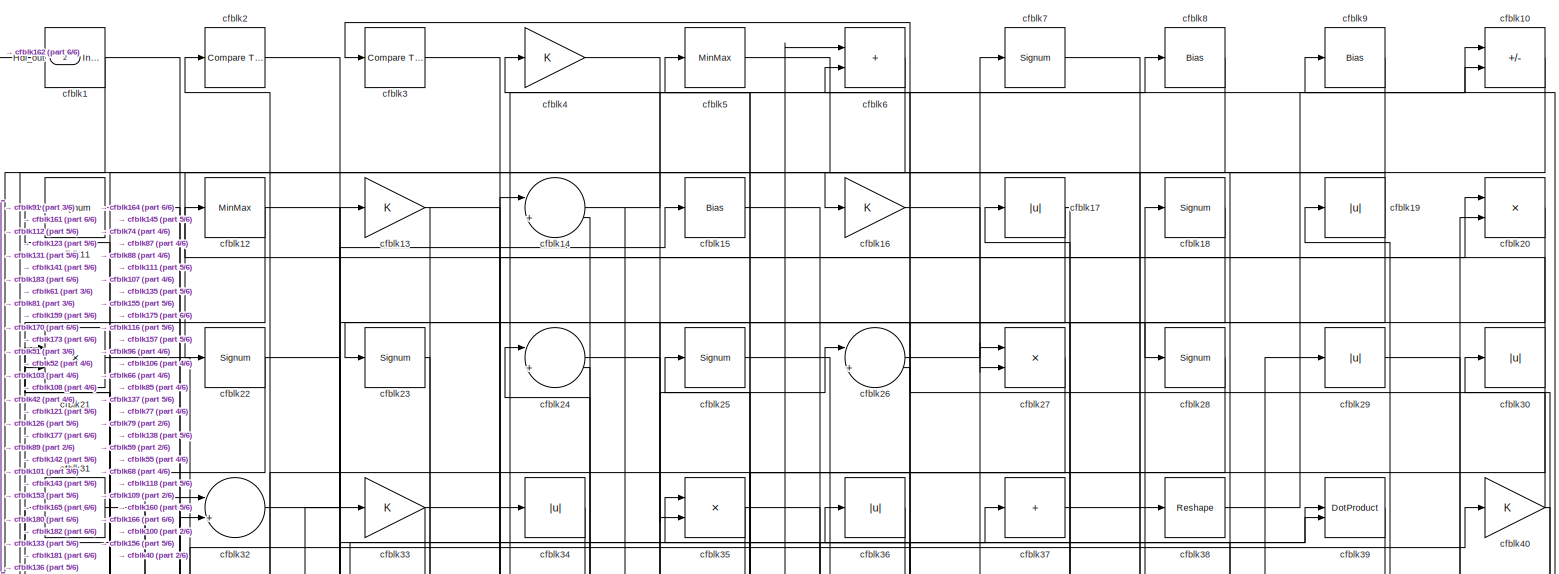
[diagram: root canvas - part 1/6, full width, top band]
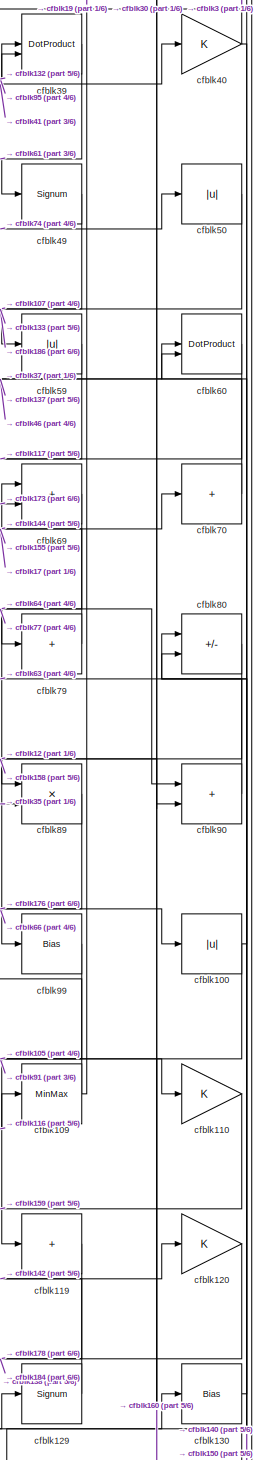
[diagram: root canvas - part 2/6, middle right region]
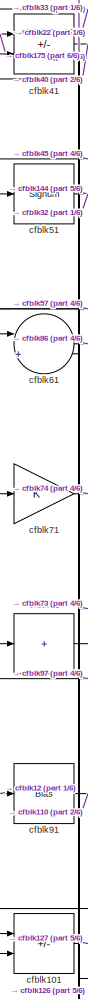
[diagram: root canvas - part 3/6, middle left region]
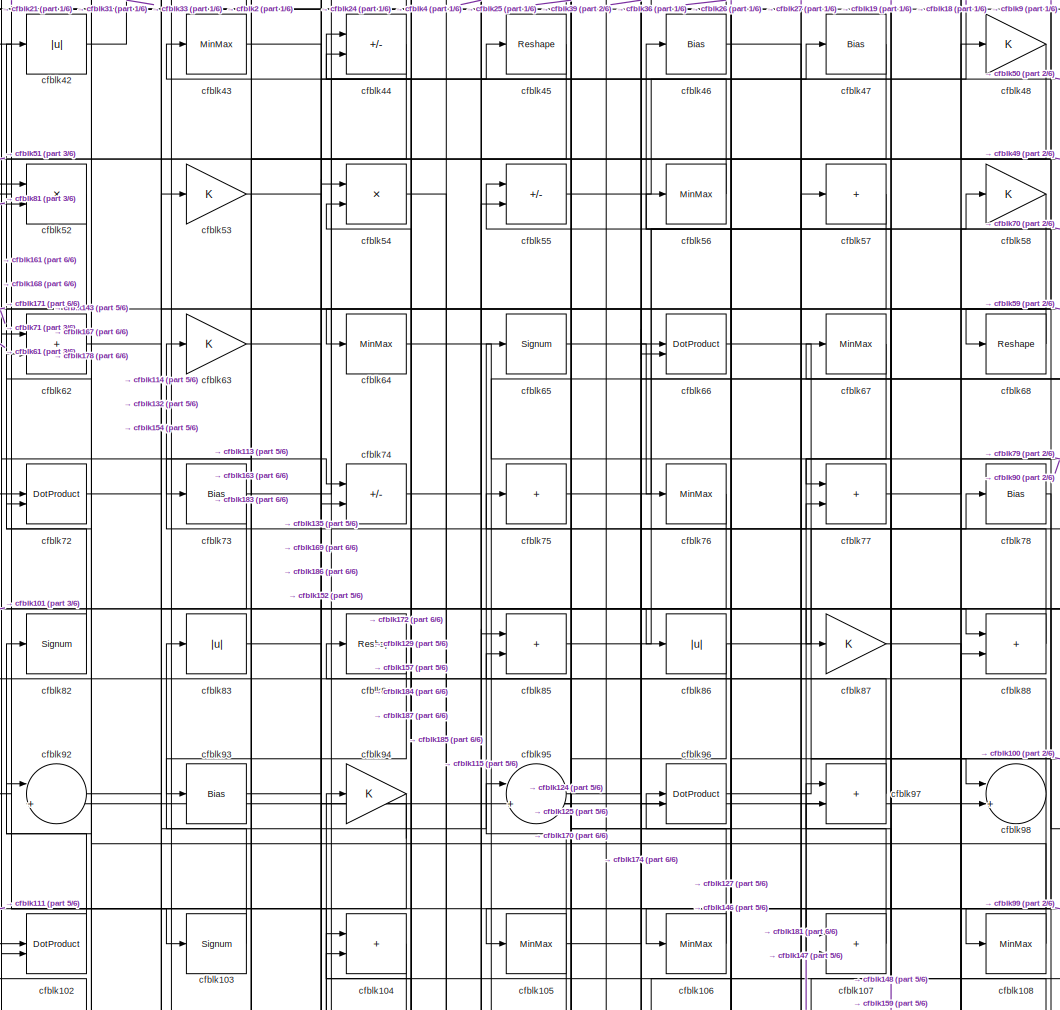
[diagram: root canvas - part 4/6, central region]
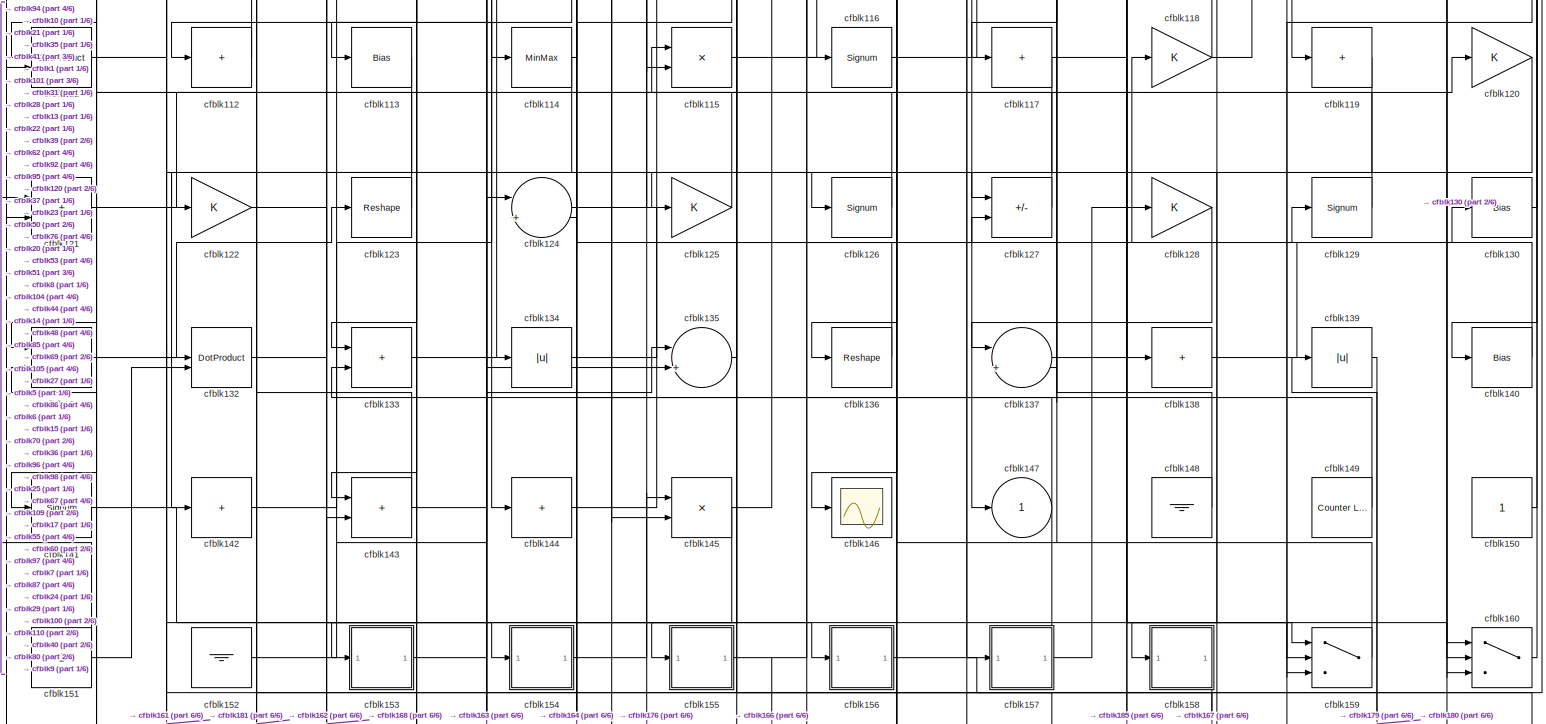
[diagram: root canvas - part 5/6, full width, bottom band]
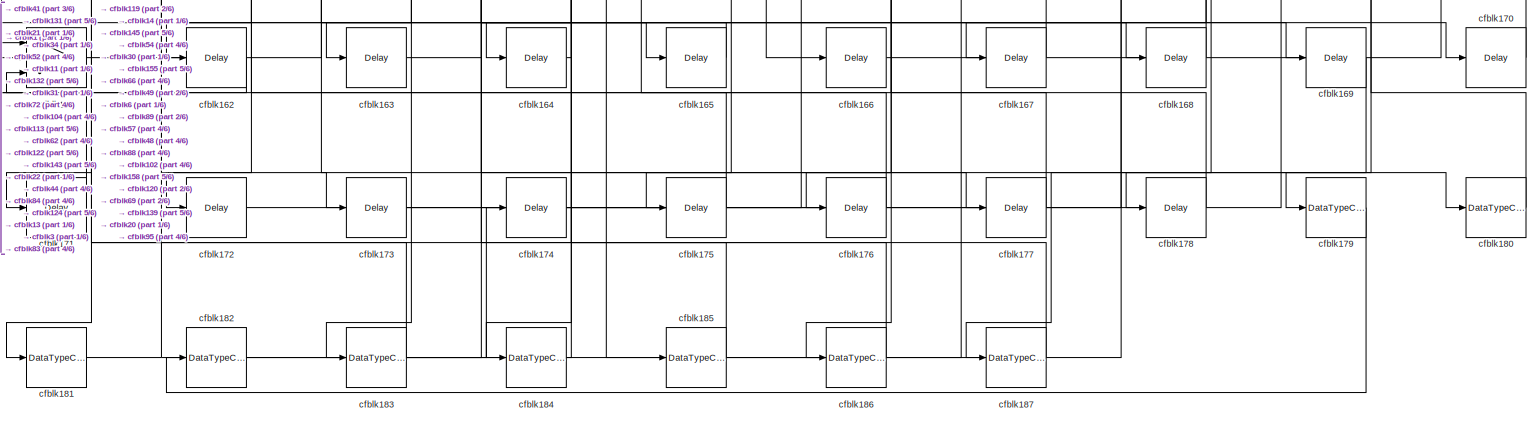
[diagram: root canvas - part 6/6, full width, bottom band]
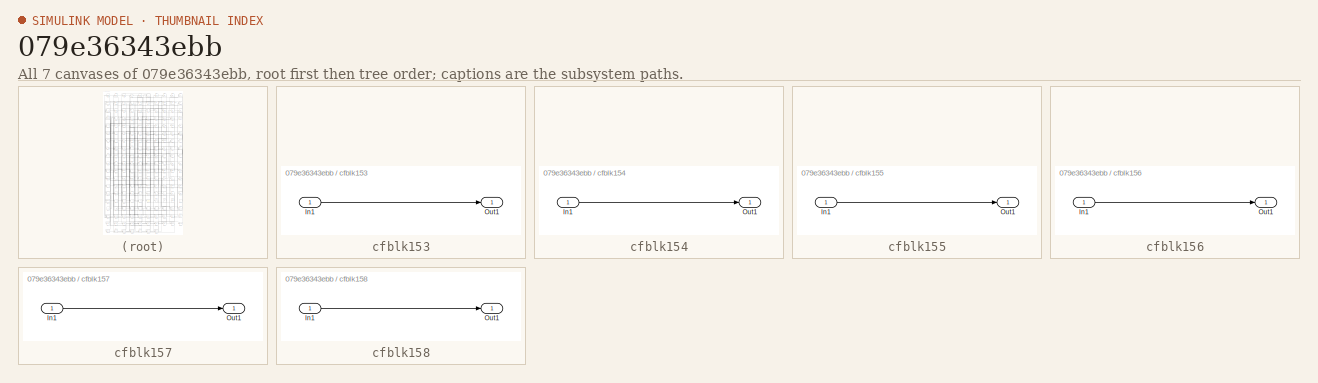
[diagram: thumbnail index - all 7 canvases of the model, root first then tree order]
MODEL slx_079e36343ebb
KIND model
CONFIG AbsTol = auto
CONFIG EnableMultiTasking = off
CONFIG FixedStep = auto
CONFIG MaxStep = auto
CONFIG MinStep = auto
CONFIG RelTol = 1e-3
CONFIG SampleTimeConstraint = Unconstrained
CONFIG SolverName = VariableStepAuto
CONFIG StartTime = 0.0
CONFIG StopTime = 10.0
BLOCK [Outport] Hdl_out
  OutDataTypeStr = uint8
  Port = 2
BLOCK [Reference] cfblk1  REF=simulink/Logic and Bit
Operations/Detect
Increase
  LibrarySourceBlock = hdlsllib/Logic and Bit\nOperations/Detect\nIncrease
  SourceBlock = simulink/Logic and Bit\nOperations/Detect\nIncrease
  SourceType = Detect Increase
BLOCK [Sum] cfblk10
  IconShape = rectangular
  Inputs = +-
  OutDataTypeStr = uint8
BLOCK [Abs] cfblk100
  OutDataTypeStr = uint8
  SaturateOnIntegerOverflow = off
BLOCK [Sum] cfblk101
  IconShape = rectangular
  Inputs = +-
  OutDataTypeStr = uint8
BLOCK [DotProduct] cfblk102
  OutDataTypeStr = uint8
BLOCK [Signum] cfblk103
BLOCK [Sum] cfblk104
  IconShape = rectangular
  OutDataTypeStr = uint8
BLOCK [MinMax] cfblk105
  OutDataTypeStr = uint8
BLOCK [MinMax] cfblk106
  OutDataTypeStr = uint8
BLOCK [Sum] cfblk107
  IconShape = rectangular
  OutDataTypeStr = uint8
BLOCK [MinMax] cfblk108
  OutDataTypeStr = uint8
BLOCK [MinMax] cfblk109
  OutDataTypeStr = uint8
BLOCK [Signum] cfblk11
BLOCK [Gain] cfblk110
  OutDataTypeStr = uint8
BLOCK [DotProduct] cfblk111
  OutDataTypeStr = uint8
BLOCK [Sum] cfblk112
  IconShape = rectangular
  Inputs = +
  OutDataTypeStr = uint8
BLOCK [Bias] cfblk113
  Bias = 0.0
  SaturateOnIntegerOverflow = off
BLOCK [MinMax] cfblk114
  OutDataTypeStr = uint8
BLOCK [Product] cfblk115
  Inputs = */
  OutDataTypeStr = uint8
  RndMeth = Zero
  SaturateOnIntegerOverflow = on
BLOCK [Signum] cfblk116
BLOCK [Sum] cfblk117
  IconShape = rectangular
  Inputs = +
  OutDataTypeStr = uint8
BLOCK [Gain] cfblk118
  OutDataTypeStr = uint8
BLOCK [Sum] cfblk119
  IconShape = rectangular
  Inputs = +
  OutDataTypeStr = uint8
BLOCK [MinMax] cfblk12
  OutDataTypeStr = uint8
BLOCK [Gain] cfblk120
  OutDataTypeStr = uint8
BLOCK [Sum] cfblk121
  IconShape = rectangular
  OutDataTypeStr = uint8
BLOCK [Gain] cfblk122
  OutDataTypeStr = uint8
BLOCK [Reshape] cfblk123
BLOCK [Sum] cfblk124
  Inputs = |++
  OutDataTypeStr = uint8
BLOCK [Gain] cfblk125
  OutDataTypeStr = uint8
BLOCK [Signum] cfblk126
BLOCK [Sum] cfblk127
  IconShape = rectangular
  Inputs = +-
  OutDataTypeStr = uint8
BLOCK [Gain] cfblk128
  OutDataTypeStr = uint8
BLOCK [Signum] cfblk129
BLOCK [Gain] cfblk13
  OutDataTypeStr = uint8
BLOCK [Bias] cfblk130
  Bias = 0.0
  SaturateOnIntegerOverflow = off
BLOCK [Sum] cfblk131
  IconShape = rectangular
  Inputs = +-
  OutDataTypeStr = uint8
BLOCK [DotProduct] cfblk132
  OutDataTypeStr = uint8
BLOCK [Sum] cfblk133
  IconShape = rectangular
  OutDataTypeStr = uint8
BLOCK [Abs] cfblk134
  OutDataTypeStr = uint8
  SaturateOnIntegerOverflow = off
BLOCK [Sum] cfblk135
  Inputs = |++
  OutDataTypeStr = uint8
BLOCK [Reshape] cfblk136
BLOCK [Sum] cfblk137
  Inputs = |++
  OutDataTypeStr = uint8
BLOCK [Sum] cfblk138
  IconShape = rectangular
  Inputs = +
  OutDataTypeStr = uint8
BLOCK [Abs] cfblk139
  OutDataTypeStr = uint8
  SaturateOnIntegerOverflow = off
BLOCK [Sum] cfblk14
  Inputs = |++
  OutDataTypeStr = uint8
BLOCK [Bias] cfblk140
  Bias = 0.0
  SaturateOnIntegerOverflow = off
BLOCK [Signum] cfblk141
BLOCK [Sum] cfblk142
  IconShape = rectangular
  Inputs = +
  OutDataTypeStr = uint8
BLOCK [Sum] cfblk143
  IconShape = rectangular
  OutDataTypeStr = uint8
BLOCK [Sum] cfblk144
  IconShape = rectangular
  Inputs = +
  OutDataTypeStr = uint8
BLOCK [Product] cfblk145
  Inputs = */
  OutDataTypeStr = uint8
  RndMeth = Zero
  SaturateOnIntegerOverflow = on
BLOCK [Scope] cfblk146
  Floating = off
  NumInputPorts = 1
  ScopeSpecificationString = Simulink.scopes.TimeScopeBlockCfg('CurrentConfiguration', extmgr.ConfigurationSet(extmgr.Configuration('Core','General UI',true),extmgr.Configuration('Core','Source UI',true),extmgr.Configuration('Sources','WiredSimulink',true,'DataLoggingVariableName','ScopeData2','DataLoggingSaveFormat','Array','DataLoggingLimitDataPoints',true,'DataLoggingDecimation','1'),extmgr.Configuration('Visuals','Time Do...<+868ch>
BLOCK [Outport] cfblk147
  OutDataTypeStr = uint8
  VectorParamsAs1DForOutWhenUnconnected = off
BLOCK [Ground] cfblk148
BLOCK [Reference] cfblk149  REF=hdlsllib/Sources/Counter
Limited
  SourceBlock = hdlsllib/Sources/Counter\nLimited
  SourceType = Counter Limited
BLOCK [Bias] cfblk15
  Bias = 0.0
  SaturateOnIntegerOverflow = off
BLOCK [Constant] cfblk150
  OutDataTypeStr = uint8
  SampleTime = -1
BLOCK [Constant] cfblk151
  OutDataTypeStr = uint8
  SampleTime = -1
BLOCK [Ground] cfblk152
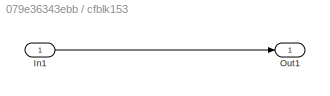
BLOCK [SubSystem] cfblk153
  LibrarySourceBlock = hdlsllib/Ports &\nSubsystems/Subsystem
BLOCK [Inport] cfblk153/In1
BLOCK [Outport] cfblk153/Out1
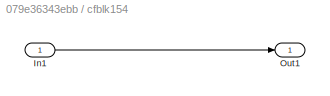
BLOCK [SubSystem] cfblk154
  LibrarySourceBlock = hdlsllib/Ports &\nSubsystems/Subsystem
BLOCK [Inport] cfblk154/In1
BLOCK [Outport] cfblk154/Out1
BLOCK [SubSystem] cfblk155
  LibrarySourceBlock = hdlsllib/Ports &\nSubsystems/Subsystem
BLOCK [Inport] cfblk155/In1
BLOCK [Outport] cfblk155/Out1
BLOCK [SubSystem] cfblk156
  LibrarySourceBlock = hdlsllib/Ports &\nSubsystems/Subsystem
BLOCK [Inport] cfblk156/In1
BLOCK [Outport] cfblk156/Out1
BLOCK [SubSystem] cfblk157
  LibrarySourceBlock = hdlsllib/Ports &\nSubsystems/Subsystem
BLOCK [Inport] cfblk157/In1
BLOCK [Outport] cfblk157/Out1
BLOCK [SubSystem] cfblk158
  LibrarySourceBlock = hdlsllib/Ports &\nSubsystems/Subsystem
BLOCK [Inport] cfblk158/In1
BLOCK [Outport] cfblk158/Out1
BLOCK [Switch] cfblk159
  InputSameDT = off
  OutDataTypeStr = uint8
  SaturateOnIntegerOverflow = off
BLOCK [Gain] cfblk16
  OutDataTypeStr = uint8
BLOCK [Switch] cfblk160
  InputSameDT = off
  OutDataTypeStr = uint8
  SaturateOnIntegerOverflow = off
BLOCK [Switch] cfblk161
  InputSameDT = off
  OutDataTypeStr = uint8
  SaturateOnIntegerOverflow = off
BLOCK [Delay] cfblk162
  InputPortMap = u0
  SampleTime = 1
BLOCK [Delay] cfblk163
  InputPortMap = u0
  SampleTime = 1
BLOCK [Delay] cfblk164
  InputPortMap = u0
  SampleTime = 1
BLOCK [Delay] cfblk165
  InputPortMap = u0
  SampleTime = 1
BLOCK [Delay] cfblk166
  InputPortMap = u0
  SampleTime = 1
BLOCK [Delay] cfblk167
  InputPortMap = u0
  SampleTime = 1
BLOCK [Delay] cfblk168
  InputPortMap = u0
  SampleTime = 1
BLOCK [Delay] cfblk169
  InputPortMap = u0
  SampleTime = 1
BLOCK [Abs] cfblk17
  OutDataTypeStr = uint8
  SaturateOnIntegerOverflow = off
BLOCK [Delay] cfblk170
  InputPortMap = u0
  SampleTime = 1
BLOCK [Delay] cfblk171
  InputPortMap = u0
  SampleTime = 1
BLOCK [Delay] cfblk172
  InputPortMap = u0
  SampleTime = 1
BLOCK [Delay] cfblk173
  InputPortMap = u0
  SampleTime = 1
BLOCK [Delay] cfblk174
  InputPortMap = u0
  SampleTime = 1
BLOCK [Delay] cfblk175
  InputPortMap = u0
  SampleTime = 1
BLOCK [Delay] cfblk176
  InputPortMap = u0
  SampleTime = 1
BLOCK [Delay] cfblk177
  InputPortMap = u0
  SampleTime = 1
BLOCK [Delay] cfblk178
  InputPortMap = u0
  SampleTime = 1
BLOCK [DataTypeConversion] cfblk179
  OutDataTypeStr = uint8
  RndMeth = Floor
  SaturateOnIntegerOverflow = off
BLOCK [Signum] cfblk18
BLOCK [DataTypeConversion] cfblk180
  OutDataTypeStr = uint8
  RndMeth = Floor
  SaturateOnIntegerOverflow = off
BLOCK [DataTypeConversion] cfblk181
  OutDataTypeStr = uint8
  RndMeth = Floor
  SaturateOnIntegerOverflow = off
BLOCK [DataTypeConversion] cfblk182
  OutDataTypeStr = uint8
  RndMeth = Floor
  SaturateOnIntegerOverflow = off
BLOCK [DataTypeConversion] cfblk183
  OutDataTypeStr = uint8
  RndMeth = Floor
  SaturateOnIntegerOverflow = off
BLOCK [DataTypeConversion] cfblk184
  OutDataTypeStr = uint8
  RndMeth = Floor
  SaturateOnIntegerOverflow = off
BLOCK [DataTypeConversion] cfblk185
  OutDataTypeStr = uint8
  RndMeth = Floor
  SaturateOnIntegerOverflow = off
BLOCK [DataTypeConversion] cfblk186
  OutDataTypeStr = uint8
  RndMeth = Floor
  SaturateOnIntegerOverflow = off
BLOCK [DataTypeConversion] cfblk187
  OutDataTypeStr = uint8
  RndMeth = Floor
  SaturateOnIntegerOverflow = off
BLOCK [Abs] cfblk19
  OutDataTypeStr = uint8
  SaturateOnIntegerOverflow = off
BLOCK [Reference] cfblk2  REF=hdlsllib/Logic and Bit
Operations/Compare
To Constant
  SourceBlock = hdlsllib/Logic and Bit\nOperations/Compare\nTo Constant
  SourceType = Compare To Constant
BLOCK [Product] cfblk20
  Inputs = */
  OutDataTypeStr = uint8
  RndMeth = Zero
  SaturateOnIntegerOverflow = on
BLOCK [Product] cfblk21
  Inputs = */
  OutDataTypeStr = uint8
  RndMeth = Zero
  SaturateOnIntegerOverflow = on
BLOCK [Signum] cfblk22
BLOCK [Signum] cfblk23
BLOCK [Sum] cfblk24
  Inputs = |++
  OutDataTypeStr = uint8
BLOCK [Signum] cfblk25
BLOCK [Sum] cfblk26
  Inputs = |++
  OutDataTypeStr = uint8
BLOCK [Product] cfblk27
  Inputs = */
  OutDataTypeStr = uint8
  RndMeth = Zero
  SaturateOnIntegerOverflow = on
BLOCK [Signum] cfblk28
BLOCK [Abs] cfblk29
  OutDataTypeStr = uint8
  SaturateOnIntegerOverflow = off
BLOCK [Reference] cfblk3  REF=hdlsllib/Logic and Bit
Operations/Compare
To Constant
  SourceBlock = hdlsllib/Logic and Bit\nOperations/Compare\nTo Constant
  SourceType = Compare To Constant
BLOCK [Abs] cfblk30
  OutDataTypeStr = uint8
  SaturateOnIntegerOverflow = off
BLOCK [MinMax] cfblk31
  OutDataTypeStr = uint8
BLOCK [Sum] cfblk32
  Inputs = |++
  OutDataTypeStr = uint8
BLOCK [Gain] cfblk33
  OutDataTypeStr = uint8
BLOCK [Abs] cfblk34
  OutDataTypeStr = uint8
  SaturateOnIntegerOverflow = off
BLOCK [Product] cfblk35
  Inputs = */
  OutDataTypeStr = uint8
  RndMeth = Zero
  SaturateOnIntegerOverflow = on
BLOCK [Abs] cfblk36
  OutDataTypeStr = uint8
  SaturateOnIntegerOverflow = off
BLOCK [Sum] cfblk37
  IconShape = rectangular
  Inputs = +
  OutDataTypeStr = uint8
BLOCK [Reshape] cfblk38
BLOCK [DotProduct] cfblk39
  OutDataTypeStr = uint8
BLOCK [Gain] cfblk4
  OutDataTypeStr = uint8
BLOCK [Gain] cfblk40
  OutDataTypeStr = uint8
BLOCK [Sum] cfblk41
  IconShape = rectangular
  Inputs = +-
  OutDataTypeStr = uint8
BLOCK [Abs] cfblk42
  OutDataTypeStr = uint8
  SaturateOnIntegerOverflow = off
BLOCK [MinMax] cfblk43
  OutDataTypeStr = uint8
BLOCK [Sum] cfblk44
  IconShape = rectangular
  Inputs = +-
  OutDataTypeStr = uint8
BLOCK [Reshape] cfblk45
BLOCK [Bias] cfblk46
  Bias = 0.0
  SaturateOnIntegerOverflow = off
BLOCK [Bias] cfblk47
  Bias = 0.0
  SaturateOnIntegerOverflow = off
BLOCK [Gain] cfblk48
  OutDataTypeStr = uint8
BLOCK [Signum] cfblk49
BLOCK [MinMax] cfblk5
  OutDataTypeStr = uint8
BLOCK [Abs] cfblk50
  OutDataTypeStr = uint8
  SaturateOnIntegerOverflow = off
BLOCK [Signum] cfblk51
BLOCK [Product] cfblk52
  Inputs = */
  OutDataTypeStr = uint8
  RndMeth = Zero
  SaturateOnIntegerOverflow = on
BLOCK [Gain] cfblk53
  OutDataTypeStr = uint8
BLOCK [Product] cfblk54
  Inputs = */
  OutDataTypeStr = uint8
  RndMeth = Zero
  SaturateOnIntegerOverflow = on
BLOCK [Sum] cfblk55
  IconShape = rectangular
  Inputs = +-
  OutDataTypeStr = uint8
BLOCK [MinMax] cfblk56
  OutDataTypeStr = uint8
BLOCK [Sum] cfblk57
  IconShape = rectangular
  Inputs = +
  OutDataTypeStr = uint8
BLOCK [Gain] cfblk58
  OutDataTypeStr = uint8
BLOCK [Abs] cfblk59
  OutDataTypeStr = uint8
  SaturateOnIntegerOverflow = off
BLOCK [Sum] cfblk6
  IconShape = rectangular
  OutDataTypeStr = uint8
BLOCK [DotProduct] cfblk60
  OutDataTypeStr = uint8
BLOCK [Sum] cfblk61
  Inputs = |++
  OutDataTypeStr = uint8
BLOCK [Sum] cfblk62
  IconShape = rectangular
  OutDataTypeStr = uint8
BLOCK [Gain] cfblk63
  OutDataTypeStr = uint8
BLOCK [MinMax] cfblk64
  OutDataTypeStr = uint8
BLOCK [Signum] cfblk65
BLOCK [DotProduct] cfblk66
  OutDataTypeStr = uint8
BLOCK [MinMax] cfblk67
  OutDataTypeStr = uint8
BLOCK [Reshape] cfblk68
BLOCK [Sum] cfblk69
  IconShape = rectangular
  OutDataTypeStr = uint8
BLOCK [Signum] cfblk7
BLOCK [Sum] cfblk70
  IconShape = rectangular
  Inputs = +
  OutDataTypeStr = uint8
BLOCK [Gain] cfblk71
  OutDataTypeStr = uint8
BLOCK [DotProduct] cfblk72
  OutDataTypeStr = uint8
BLOCK [Bias] cfblk73
  Bias = 0.0
  SaturateOnIntegerOverflow = off
BLOCK [Sum] cfblk74
  IconShape = rectangular
  Inputs = +-
  OutDataTypeStr = uint8
BLOCK [Sum] cfblk75
  IconShape = rectangular
  Inputs = +
  OutDataTypeStr = uint8
BLOCK [MinMax] cfblk76
  OutDataTypeStr = uint8
BLOCK [Sum] cfblk77
  IconShape = rectangular
  OutDataTypeStr = uint8
BLOCK [Bias] cfblk78
  Bias = 0.0
  SaturateOnIntegerOverflow = off
BLOCK [Sum] cfblk79
  IconShape = rectangular
  Inputs = +
  OutDataTypeStr = uint8
BLOCK [Bias] cfblk8
  Bias = 0.0
  SaturateOnIntegerOverflow = off
BLOCK [Sum] cfblk80
  IconShape = rectangular
  Inputs = +-
  OutDataTypeStr = uint8
BLOCK [Sum] cfblk81
  IconShape = rectangular
  Inputs = +
  OutDataTypeStr = uint8
BLOCK [Signum] cfblk82
BLOCK [Abs] cfblk83
  OutDataTypeStr = uint8
  SaturateOnIntegerOverflow = off
BLOCK [Reshape] cfblk84
BLOCK [Sum] cfblk85
  IconShape = rectangular
  OutDataTypeStr = uint8
BLOCK [Abs] cfblk86
  OutDataTypeStr = uint8
  SaturateOnIntegerOverflow = off
BLOCK [Gain] cfblk87
  OutDataTypeStr = uint8
BLOCK [Sum] cfblk88
  IconShape = rectangular
  OutDataTypeStr = uint8
BLOCK [Product] cfblk89
  Inputs = */
  OutDataTypeStr = uint8
  RndMeth = Zero
  SaturateOnIntegerOverflow = on
BLOCK [Bias] cfblk9
  Bias = 0.0
  SaturateOnIntegerOverflow = off
BLOCK [Sum] cfblk90
  IconShape = rectangular
  OutDataTypeStr = uint8
BLOCK [Bias] cfblk91
  Bias = 0.0
  SaturateOnIntegerOverflow = off
BLOCK [Sum] cfblk92
  Inputs = |++
  OutDataTypeStr = uint8
BLOCK [Bias] cfblk93
  Bias = 0.0
  SaturateOnIntegerOverflow = off
BLOCK [Gain] cfblk94
  OutDataTypeStr = uint8
BLOCK [Sum] cfblk95
  Inputs = |++
  OutDataTypeStr = uint8
BLOCK [DotProduct] cfblk96
  OutDataTypeStr = uint8
BLOCK [Sum] cfblk97
  IconShape = rectangular
  OutDataTypeStr = uint8
BLOCK [Sum] cfblk98
  Inputs = |++
  OutDataTypeStr = uint8
BLOCK [Bias] cfblk99
  Bias = 0.0
  SaturateOnIntegerOverflow = off
NET cfblk100:1 -> cfblk119:1, cfblk160:3, cfblk30:1
NET cfblk101:1 -> cfblk127:1, cfblk32:1
LINE cfblk102:1 -> cfblk82:1
LINE cfblk103:1 -> cfblk83:1
LINE cfblk104:1 -> cfblk172:1
NET cfblk105:1 -> cfblk124:2, cfblk65:1, cfblk77:2
LINE cfblk106:1 -> cfblk75:1
NET cfblk107:1 -> cfblk4:1, cfblk56:1
NET cfblk108:1 -> cfblk2:1, cfblk85:2
NET cfblk109:1 -> cfblk19:1, cfblk35:1
LINE cfblk10:1 -> cfblk141:1
LINE cfblk110:1 -> cfblk159:2
LINE cfblk111:1 -> cfblk62:1
LINE cfblk112:1 -> cfblk31:1
LINE cfblk113:1 -> cfblk162:1
NET cfblk114:1 -> cfblk142:1, cfblk44:2
LINE cfblk115:1 -> cfblk97:2
NET cfblk116:1 -> cfblk109:1, cfblk136:1
NET cfblk117:1 -> cfblk122:1, cfblk160:2
NET cfblk118:1 -> cfblk24:1, cfblk29:1
LINE cfblk119:1 -> cfblk184:1
LINE cfblk11:1 -> cfblk170:1
LINE cfblk120:1 -> cfblk178:1
LINE cfblk121:1 -> cfblk13:1
LINE cfblk122:1 -> cfblk168:1
LINE cfblk123:1 -> cfblk21:1
NET cfblk124:1 -> cfblk127:2, cfblk55:2
LINE cfblk125:1 -> cfblk115:1
LINE cfblk126:1 -> cfblk41:2
LINE cfblk127:1 -> cfblk96:1
LINE cfblk128:1 -> cfblk137:1
LINE cfblk129:1 -> cfblk104:2
NET cfblk12:1 -> cfblk89:1, cfblk91:1
LINE cfblk130:1 -> cfblk60:1
LINE cfblk131:1 -> cfblk123:1
NET cfblk132:1 -> cfblk39:2, cfblk95:1
LINE cfblk133:1 -> cfblk8:1
LINE cfblk134:1 -> cfblk129:1
LINE cfblk135:1 -> cfblk5:1
LINE cfblk136:1 -> cfblk24:2
LINE cfblk137:1 -> cfblk60:2
LINE cfblk138:1 -> cfblk130:1
LINE cfblk139:1 -> cfblk179:1
NET cfblk13:1 -> cfblk153:1, cfblk165:1
LINE cfblk140:1 -> cfblk118:1
LINE cfblk141:1 -> cfblk156:1
NET cfblk142:1 -> cfblk120:1, cfblk37:1
NET cfblk143:1 -> cfblk135:1, cfblk92:1
LINE cfblk144:1 -> cfblk69:1
NET cfblk145:1 -> cfblk164:1, cfblk6:1
LINE cfblk148:1 -> cfblk55:1
LINE cfblk149:1 -> cfblk133:2
NET cfblk14:1 -> cfblk10:2, cfblk145:2
LINE cfblk150:1 -> cfblk80:2
NET cfblk151:1 -> cfblk121:1, cfblk132:2
NET cfblk152:1 -> cfblk134:1, cfblk94:1
LINE cfblk153/In1:1 -> cfblk153/Out1:1
LINE cfblk153:1 -> cfblk20:1
LINE cfblk154/In1:1 -> cfblk154/Out1:1
LINE cfblk154:1 -> cfblk85:1
LINE cfblk155/In1:1 -> cfblk155/Out1:1
NET cfblk155:1 -> cfblk166:1, cfblk70:1
LINE cfblk156/In1:1 -> cfblk156/Out1:1
LINE cfblk156:1 -> cfblk9:1
LINE cfblk157/In1:1 -> cfblk157/Out1:1
NET cfblk157:1 -> cfblk104:1, cfblk128:1
LINE cfblk158/In1:1 -> cfblk158/Out1:1
LINE cfblk158:1 -> cfblk167:1
NET cfblk159:1 -> cfblk36:1, cfblk97:1
LINE cfblk15:1 -> cfblk116:1
LINE cfblk160:1 -> cfblk80:1
NET cfblk161:1 -> cfblk143:2, cfblk72:1
LINE cfblk162:1 -> cfblk1:1
LINE cfblk163:1 -> cfblk124:1
LINE cfblk164:1 -> cfblk14:2
LINE cfblk165:1 -> cfblk161:2
LINE cfblk166:1 -> cfblk20:2
LINE cfblk167:1 -> cfblk72:2
LINE cfblk168:1 -> cfblk102:1
LINE cfblk169:1 -> cfblk187:1
LINE cfblk16:1 -> cfblk27:2
LINE cfblk170:1 -> cfblk95:2
LINE cfblk171:1 -> cfblk161:3
LINE cfblk172:1 -> cfblk88:2
LINE cfblk173:1 -> cfblk69:2
LINE cfblk174:1 -> cfblk66:1
LINE cfblk175:1 -> cfblk41:1
LINE cfblk176:1 -> cfblk145:1
LINE cfblk177:1 -> cfblk6:2
LINE cfblk178:1 -> cfblk62:2
LINE cfblk179:1 -> cfblk182:1
NET cfblk17:1 -> cfblk137:2, cfblk35:2
LINE cfblk180:1 -> cfblk139:1
NET cfblk181:1 -> cfblk132:1, cfblk57:1
LINE cfblk182:1 -> cfblk34:1
NET cfblk183:1 -> cfblk174:1, cfblk21:2
LINE cfblk184:1 -> cfblk84:1
NET cfblk185:1 -> cfblk131:2, cfblk48:1
LINE cfblk186:1 -> cfblk54:1
LINE cfblk187:1 -> cfblk54:2
LINE cfblk18:1 -> cfblk106:1
NET cfblk19:1 -> cfblk16:1, cfblk77:1
NET cfblk1:1 -> cfblk159:3, cfblk161:1
LINE cfblk20:1 -> cfblk23:1
LINE cfblk21:1 -> cfblk103:1
NET cfblk22:1 -> cfblk126:1, cfblk177:1, cfblk61:1
LINE cfblk23:1 -> cfblk143:1
LINE cfblk24:1 -> cfblk87:1
LINE cfblk25:1 -> cfblk157:1
LINE cfblk26:1 -> cfblk7:1
LINE cfblk27:1 -> cfblk155:1
LINE cfblk28:1 -> cfblk112:1
LINE cfblk29:1 -> cfblk160:1
NET cfblk2:1 -> cfblk28:1, cfblk66:2
NET cfblk30:1 -> cfblk12:1, cfblk175:1
NET cfblk31:1 -> cfblk131:1, cfblk173:1, cfblk52:1
LINE cfblk32:1 -> cfblk15:1
NET cfblk33:1 -> cfblk101:2, cfblk14:1
LINE cfblk34:1 -> cfblk181:1
NET cfblk35:1 -> cfblk111:1, cfblk89:2
LINE cfblk36:1 -> cfblk96:2
LINE cfblk37:1 -> cfblk59:1
LINE cfblk38:1 -> cfblk10:1
NET cfblk39:1 -> cfblk49:1, cfblk61:2
LINE cfblk3:1 -> cfblk180:1
NET cfblk40:1 -> cfblk140:1, cfblk3:1
LINE cfblk41:1 -> cfblk40:1
LINE cfblk42:1 -> cfblk33:1
LINE cfblk43:1 -> cfblk74:2
LINE cfblk44:1 -> cfblk163:1
LINE cfblk45:1 -> cfblk51:1
LINE cfblk46:1 -> cfblk90:2
LINE cfblk47:1 -> cfblk102:2
LINE cfblk48:1 -> cfblk115:2
NET cfblk49:1 -> cfblk107:2, cfblk186:1
LINE cfblk4:1 -> cfblk88:1
LINE cfblk50:1 -> cfblk133:1
NET cfblk51:1 -> cfblk144:1, cfblk32:2
LINE cfblk52:1 -> cfblk171:1
NET cfblk53:1 -> cfblk135:2, cfblk73:1
LINE cfblk54:1 -> cfblk185:1
LINE cfblk55:1 -> cfblk18:1
LINE cfblk56:1 -> cfblk43:1
LINE cfblk57:1 -> cfblk71:1
LINE cfblk58:1 -> cfblk93:1
LINE cfblk59:1 -> cfblk107:1
LINE cfblk5:1 -> cfblk38:1
LINE cfblk60:1 -> cfblk117:1
LINE cfblk61:1 -> cfblk86:1
LINE cfblk62:1 -> cfblk114:1
LINE cfblk63:1 -> cfblk98:2
LINE cfblk64:1 -> cfblk90:1
LINE cfblk65:1 -> cfblk76:1
NET cfblk66:1 -> cfblk100:1, cfblk26:2
LINE cfblk67:1 -> cfblk147:1
LINE cfblk68:1 -> cfblk64:1
LINE cfblk69:1 -> cfblk99:1
LINE cfblk6:1 -> cfblk22:1
LINE cfblk70:1 -> cfblk46:1
LINE cfblk71:1 -> cfblk74:1
LINE cfblk72:1 -> cfblk53:1
NET cfblk73:1 -> cfblk101:1, cfblk45:1
NET cfblk74:1 -> cfblk26:1, cfblk50:1
LINE cfblk75:1 -> cfblk58:1
LINE cfblk76:1 -> cfblk113:1
LINE cfblk77:1 -> cfblk79:1
LINE cfblk78:1 -> cfblk108:1
LINE cfblk79:1 -> cfblk17:1
LINE cfblk7:1 -> cfblk138:1
LINE cfblk80:1 -> cfblk158:1
NET cfblk81:1 -> cfblk11:1, cfblk52:2
LINE cfblk82:1 -> cfblk42:1
LINE cfblk83:1 -> cfblk169:1
LINE cfblk84:1 -> cfblk183:1
LINE cfblk85:1 -> cfblk27:1
NET cfblk86:1 -> cfblk125:1, cfblk78:1
LINE cfblk87:1 -> cfblk159:1
LINE cfblk88:1 -> cfblk25:1
LINE cfblk89:1 -> cfblk176:1
LINE cfblk8:1 -> cfblk121:2
LINE cfblk90:1 -> cfblk63:1
LINE cfblk91:1 -> cfblk110:1
LINE cfblk92:1 -> cfblk154:1
LINE cfblk93:1 -> cfblk47:1
NET cfblk94:1 -> cfblk111:2, cfblk92:2
LINE cfblk95:1 -> cfblk39:1
LINE cfblk96:1 -> cfblk98:1
LINE cfblk97:1 -> cfblk81:1
NET cfblk98:1 -> cfblk146:1, cfblk44:1, cfblk67:1
LINE cfblk99:1 -> cfblk105:1
LINE cfblk9:1 -> cfblk68:1
note: NET lines group one-source signal fan-out (src -> all destinations, sorted); 1:1 wires keep LINE
